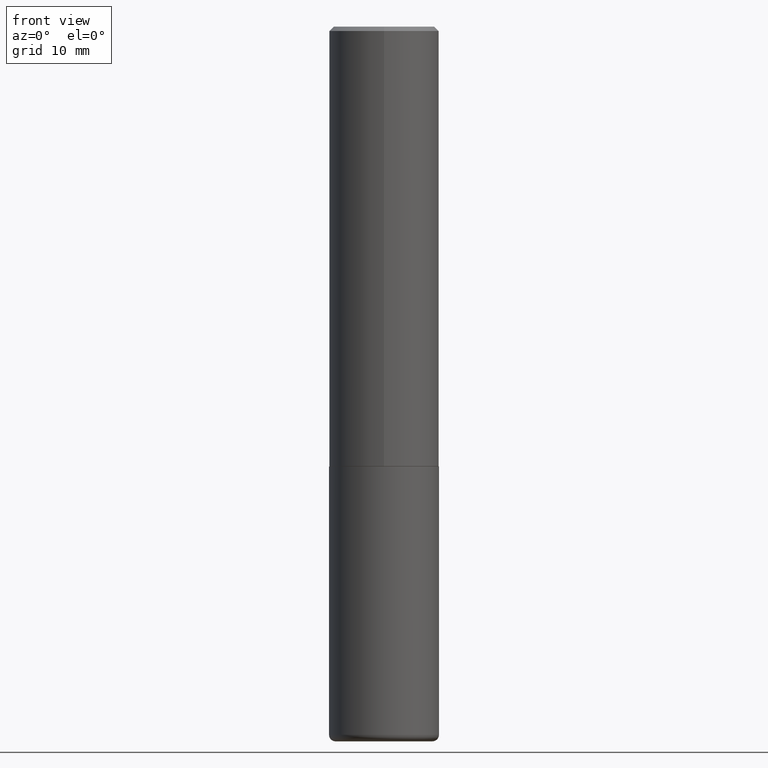
[diagram: clean part render]
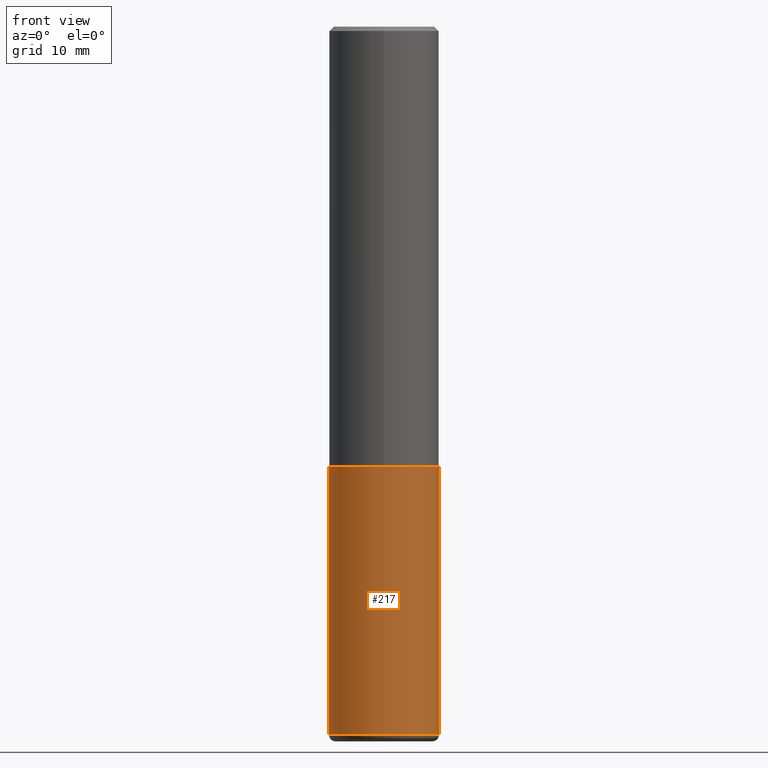
[diagram: same view with one face highlighted and labeled with its STEP entity id]
A machine part, front view. The second image highlights one B-rep face of the part: STEP entity #217.
In plain terms, the highlighted cylindrical surface (partial cylindrical patch) has radius 6.35 mm, axis along (-0, 0, 1).
Its self-contained STEP definition (entity closure, byte-faithful):
#19 = EDGE_CURVE ( 'NONE', #230, #311, #234, .T. ) ;
#21 = DIRECTION ( 'NONE',  ( 1.000000000000000000, -6.982962677686266711E-15, 0.000000000000000000 ) ) ;
#28 = VERTEX_POINT ( 'NONE', #323 ) ;
#32 = AXIS2_PLACEMENT_3D ( 'NONE', #179, #182, #21 ) ;
#39 = ORIENTED_EDGE ( 'NONE', *, *, #117, .F. ) ;
#45 = EDGE_CURVE ( 'NONE', #230, #169, #89, .T. ) ;
#64 = ORIENTED_EDGE ( 'NONE', *, *, #253, .T. ) ;
#73 = ORIENTED_EDGE ( 'NONE', *, *, #19, .F. ) ;
#76 = CARTESIAN_POINT ( 'NONE',  ( 7.874409555916140425E-29, -1.124256991107492948E-14, -3.220000000000000195 ) ) ;
#89 = CIRCLE ( 'NONE', #282, 0.2499999999999999722 ) ;
#104 = ORIENTED_EDGE ( 'NONE', *, *, #45, .T. ) ;
#117 = EDGE_CURVE ( 'NONE', #311, #28, #271, .T. ) ;
#126 = CYLINDRICAL_SURFACE ( 'NONE', #206, 0.2500000000000000000 ) ;
#128 = CARTESIAN_POINT ( 'NONE',  ( -0.2499999999999998057, -9.466213071674679013E-15, -3.220000000000000195 ) ) ;
#129 = CARTESIAN_POINT ( 'NONE',  ( -0.2500000000000000000, -7.336409454980359463E-15, -2.000000000000000000 ) ) ;
#152 = CARTESIAN_POINT ( 'NONE',  ( 0.000000000000000000, 0.000000000000000000, 0.000000000000000000 ) ) ;
#169 = VERTEX_POINT ( 'NONE', #278 ) ;
#171 = VECTOR ( 'NONE', #202, 39.37007874015748143 ) ;
#179 = CARTESIAN_POINT ( 'NONE',  ( 4.890937612370273194E-29, -6.982962677686291165E-15, -2.000000000000000000 ) ) ;
#182 = DIRECTION ( 'NONE',  ( -2.445468806185136597E-29, 3.491481338843145583E-15, 1.000000000000000000 ) ) ;
#191 = DIRECTION ( 'NONE',  ( 1.000000000000000000, -6.982962677686263555E-15, 0.000000000000000000 ) ) ;
#202 = DIRECTION ( 'NONE',  ( -2.445468806185136877E-29, 3.491481338843145188E-15, 1.000000000000000000 ) ) ;
#206 = AXIS2_PLACEMENT_3D ( 'NONE', #152, #376, #411 ) ;
#217 = ADVANCED_FACE ( 'NONE', ( #377 ), #126, .T. ) ;
#230 = VERTEX_POINT ( 'NONE', #128 ) ;
#234 = LINE ( 'NONE', #361, #171 ) ;
#253 = EDGE_CURVE ( 'NONE', #169, #28, #406, .T. ) ;
#271 = CIRCLE ( 'NONE', #32, 0.2500000000000000000 ) ;
#273 = CARTESIAN_POINT ( 'NONE',  ( 0.2500000000000000000, -1.745740669421566678E-15, 1.219044193948983948E-29 ) ) ;
#278 = CARTESIAN_POINT ( 'NONE',  ( 0.2499999999999998057, -1.298831058049649300E-14, -3.220000000000000195 ) ) ;
#282 = AXIS2_PLACEMENT_3D ( 'NONE', #76, #352, #191 ) ;
#311 = VERTEX_POINT ( 'NONE', #129 ) ;
#314 = EDGE_LOOP ( 'NONE', ( #73, #104, #64, #39 ) ) ;
#323 = CARTESIAN_POINT ( 'NONE',  ( 0.2500000000000000000, -8.728703347107857054E-15, -2.000000000000000000 ) ) ;
#352 = DIRECTION ( 'NONE',  ( -2.445468806185136597E-29, 3.491481338843145583E-15, 1.000000000000000000 ) ) ;
#361 = CARTESIAN_POINT ( 'NONE',  ( -0.2500000000000000000, 1.776356839400250465E-15, -1.229733772563726445E-29 ) ) ;
#369 = VECTOR ( 'NONE', #405, 39.37007874015748143 ) ;
#376 = DIRECTION ( 'NONE',  ( -2.445468806185136597E-29, 3.491481338843145583E-15, 1.000000000000000000 ) ) ;
#377 = FACE_OUTER_BOUND ( 'NONE', #314, .T. ) ;
#405 = DIRECTION ( 'NONE',  ( -2.445468806185136877E-29, 3.491481338843145188E-15, 1.000000000000000000 ) ) ;
#406 = LINE ( 'NONE', #273, #369 ) ;
#411 = DIRECTION ( 'NONE',  ( 1.000000000000000000, -6.982962677686266711E-15, 4.876176775795935793E-29 ) ) ;